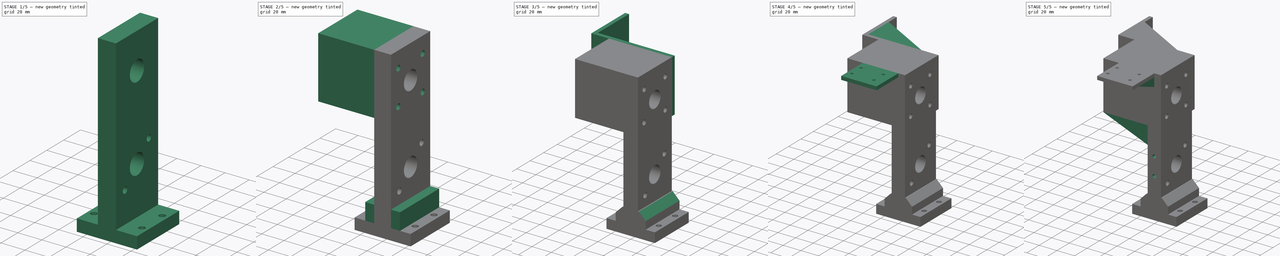
[diagram: build sequence overview — one tinted view per stage of 5, left to right]
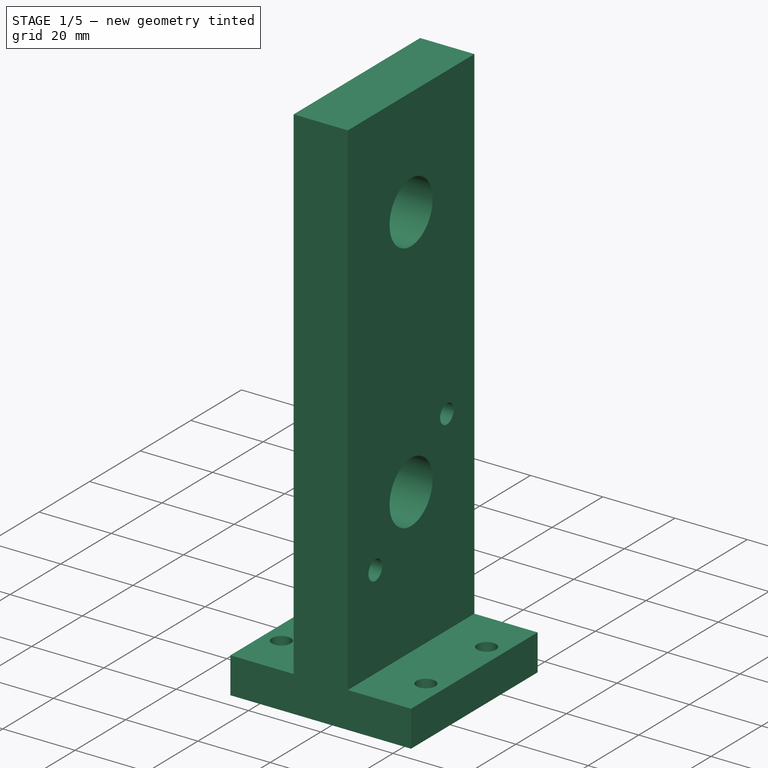
[diagram: stage 1 of 5 — iso view after this stage's code; geometry added in this stage tinted green]
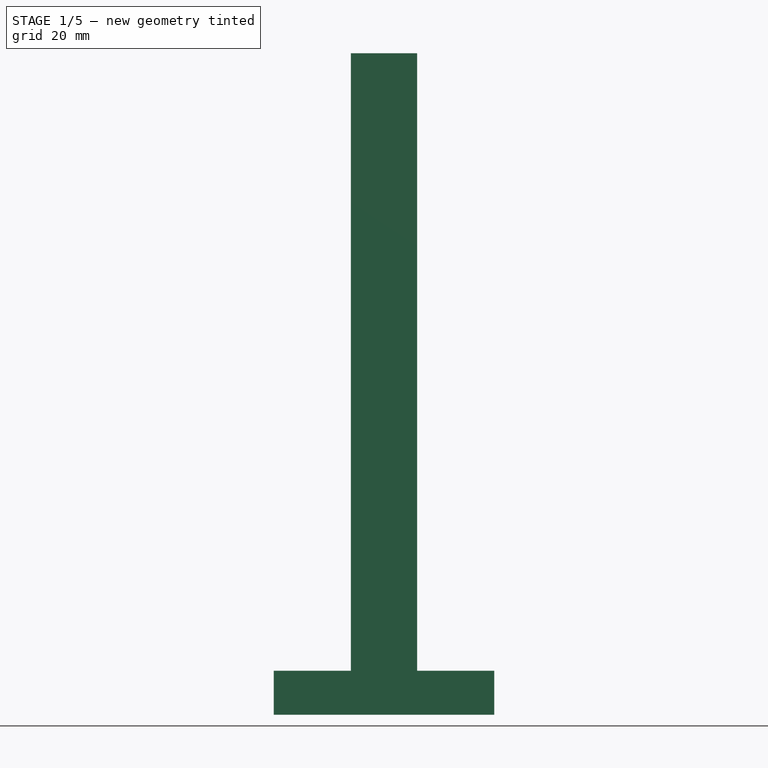
[diagram: stage 1 of 5 — front view after this stage's code; geometry added in this stage tinted green]
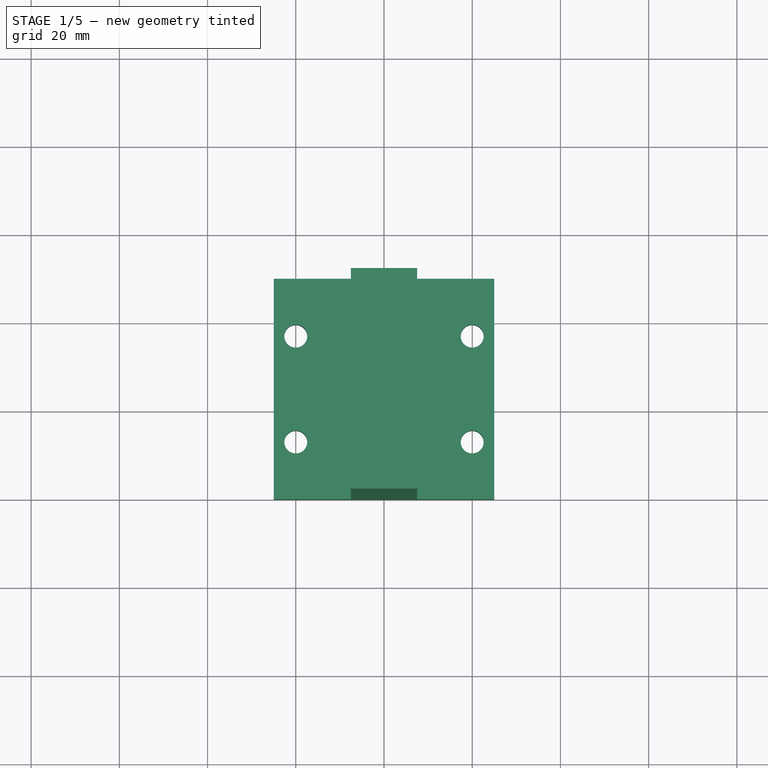
[diagram: stage 1 of 5 — top view after this stage's code; geometry added in this stage tinted green]
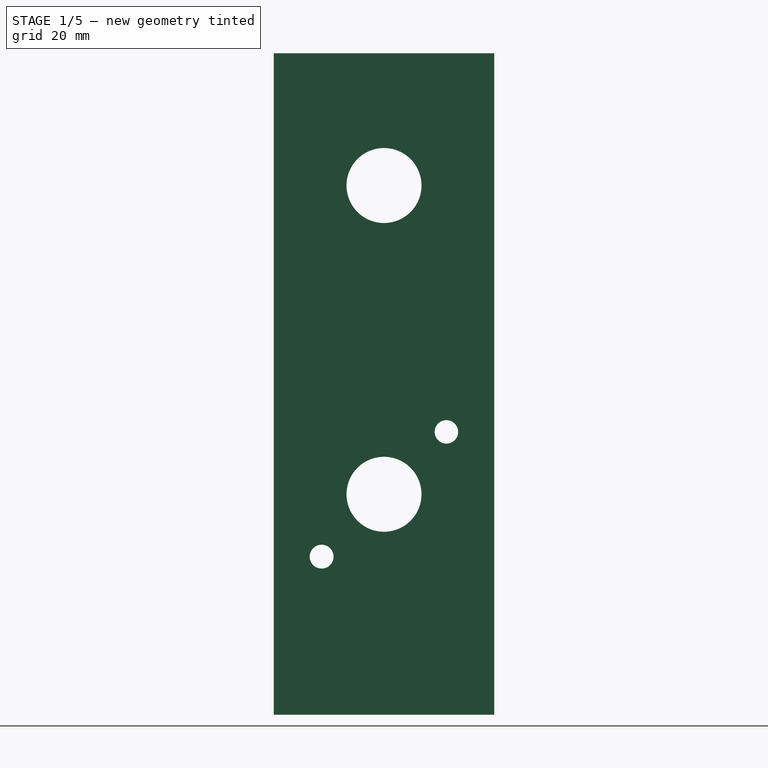
[diagram: stage 1 of 5 — right view after this stage's code; geometry added in this stage tinted green]
FCSTD DOCUMENT  (FreeCAD 0.20R29177 (Git))
Label: X_axis_Holder_Right_new
License: All rights reserved
LicenseURL: http://en.wikipedia.org/wiki/All_rights_reserved
objects: Sketcher::SketchObject×20, PartDesign::Pad×12, PartDesign::Plane×9, PartDesign::Pocket×8, PartDesign::Chamfer×2, PartDesign::Body×1
note: 74 computed .brp shape members not serialized (recipe doc carries the construction recipe); baked Part::Feature solids carry a one-line shape summary decoded from their .brp

FEATURE [Sketcher::SketchObject] Sketch
  FullyConstrained = true
  MapMode = 5
  Support = -> [XY_Plane]
  sketch-geometry (4):
    g0: LineSegment StartX=-25 StartY=0 StartZ=0 EndX=25 EndY=0 EndZ=0
    g1: LineSegment StartX=25 StartY=0 StartZ=0 EndX=25 EndY=50 EndZ=0
    g2: LineSegment StartX=25 StartY=50 StartZ=0 EndX=-25 EndY=50 EndZ=0
    g3: LineSegment StartX=-25 StartY=50 StartZ=0 EndX=-25 EndY=0 EndZ=0
  constraints (12):
    c: Coincident(g0,g1)
    c: Coincident(g1,g2)
    c: Coincident(g2,g3)
    c: Coincident(g3,g0)
    c: Horizontal(g0)
    c: Horizontal(g2)
    c: Vertical(g1)
    c: Vertical(g3)
    c: PointOnObject(g0,g-1)
    c: DistanceY(g1,g1) = 50
    c: DistanceX(g2,g2) = 50
    c: Distance(g0,g-2) = 25
FEATURE [PartDesign::Pad] Pad  label="Table"
  Direction = (0,0,1)
  Length = 10
  Length2 = 100
  Profile = -> Sketch
  ReferenceAxis = -> Sketch [N_Axis]
  Type = 0
FEATURE [Sketcher::SketchObject] Sketch001
  FullyConstrained = false
  MapMode = 5
  Placement = pos=(0,0,10) rot=(0,0,1;0rad)
  Support = -> [Pad]
  sketch-geometry (4):
    g0: LineSegment StartX=-7.5 StartY=50 StartZ=0 EndX=7.5 EndY=50 EndZ=0
    g1: LineSegment StartX=7.5 StartY=50 StartZ=0 EndX=7.5 EndY=0 EndZ=0
    g2: LineSegment StartX=7.5 StartY=0 StartZ=0 EndX=-7.5 EndY=0 EndZ=0
    g3: LineSegment StartX=-7.5 StartY=0 StartZ=0 EndX=-7.5 EndY=50 EndZ=0
  constraints (11):
    c: Coincident(g0,g1)
    c: Coincident(g1,g2)
    c: Coincident(g2,g3)
    c: Coincident(g3,g0)
    c: Horizontal(g0)
    c: Horizontal(g2)
    c: Vertical(g1)
    c: Vertical(g3)
    c: Distance(g0) = 15
    c: Distance(g0,g-2) = 7.5
    c: DistanceY(g1,g1) = 50
FEATURE [PartDesign::Pad] Pad001  label="Tower"
  BaseFeature = -> Pad
  Direction = (0,0,1)
  Length = 140
  Length2 = 100
  Profile = -> Sketch001
  ReferenceAxis = -> Sketch001 [N_Axis]
  Type = 0
FEATURE [Sketcher::SketchObject] Sketch004
  FullyConstrained = true
  MapMode = 5
  Placement = pos=(0,0,0) rot=(1,0,0;3.14159rad)
  sketch-geometry (5):
    g0: Circle CenterX=-20 CenterY=-13 CenterZ=0 NormalX=0 NormalY=0 NormalZ=1 AngleXU=0 Radius=2.6
    g1: Circle CenterX=20 CenterY=-13 CenterZ=0 NormalX=0 NormalY=0 NormalZ=1 AngleXU=0 Radius=2.6
    g2: Circle CenterX=-20 CenterY=-37 CenterZ=0 NormalX=0 NormalY=0 NormalZ=1 AngleXU=0 Radius=2.6
    g3: Circle CenterX=20 CenterY=-37 CenterZ=0 NormalX=0 NormalY=0 NormalZ=1 AngleXU=0 Radius=2.6
    g4: LineSegment StartX=-30 StartY=-25 StartZ=0 EndX=30.2882 EndY=-25 EndZ=0
  constraints (15):
    c: Radius(g3) = 2.6
    c: Radius(g2) = 2.6
    c: Radius(g1) = 2.6
    c: Radius(g0) = 2.6
    c: Horizontal(g4)
    c: Distance(g-1,g4) = 25
    c: Block(g4)
    c: Distance(g3,g4) = 12
    c: Distance(g1,g4) = 12
    c: Distance(g2,g4) = 12
    c: Distance(g0,g4) = 12
    c: Distance(g1,g-2) = 20
    c: Distance(g0,g-2) = 20
    c: Distance(g3,g-2) = 20
    c: Distance(g2,g-2) = 20
FEATURE [PartDesign::Pocket] Pocket002  label="Hole for SC16U"
  BaseFeature = -> Pad001
  Direction = (0,0,1)
  Length = 10
  Length2 = 100
  Profile = -> Sketch004
  ReferenceAxis = -> Sketch004 [N_Axis]
  Type = 0
FEATURE [Sketcher::SketchObject] Sketch005
  FullyConstrained = false
  MapMode = 5
  Placement = pos=(7.5,0,0) rot=(0.57735,0.57735,0.57735;2.0944rad)
  Support = -> [Pocket002]
  sketch-geometry (11):
    g0: Circle CenterX=25 CenterY=120 CenterZ=0 NormalX=0 NormalY=0 NormalZ=1 AngleXU=0 Radius=21.9471
    g1: Circle CenterX=25 CenterY=50 CenterZ=0 NormalX=0 NormalY=0 NormalZ=1 AngleXU=0 Radius=8.5
    g2: Circle CenterX=25 CenterY=120 CenterZ=0 NormalX=0 NormalY=0 NormalZ=1 AngleXU=0 Radius=8.5
    g3: LineSegment StartX=25 StartY=120 StartZ=0 EndX=0 EndY=95 EndZ=0
    g4: LineSegment StartX=25 StartY=120 StartZ=0 EndX=50.0034 EndY=94.9966 EndZ=0
    g5: LineSegment StartX=25 StartY=120 StartZ=0 EndX=49.5851 EndY=144.585 EndZ=0
    g6: LineSegment StartX=25 StartY=120 StartZ=0 EndX=0 EndY=145 EndZ=0
    g7: LineSegment StartX=25 StartY=50 StartZ=0 EndX=0 EndY=25 EndZ=0
    g8: LineSegment StartX=25 StartY=50 StartZ=0 EndX=50.0001 EndY=75.0001 EndZ=0
    g9: Circle CenterX=39.1421 CenterY=64.1421 CenterZ=0 NormalX=0 NormalY=0 NormalZ=1 AngleXU=0 Radius=2.66237
    g10: Circle CenterX=10.8579 CenterY=35.8579 CenterZ=0 NormalX=0 NormalY=0 NormalZ=1 AngleXU=0 Radius=2.70553
  constraints (26):
    c: Distance(g0,g-2) = 25
    c: Distance(g1,g-2) = 25
    c: Distance(g1,g0) = 70
    c: Diameter(g1) = 17
    c: Distance(g1,g-1) = 50
    c: Coincident(g2,g0)
    c: Diameter(g2) = 17
    c: Coincident(g3,g2)
    c: PointOnObject(g3,g-2)
    c: Angle(g-2,g3) = 2.35619
    c: Coincident(g4,g2)
    c: Angle(g3,g4) = 1.5708
    c: Coincident(g5,g2)
    c: Coincident(g6,g2)
    c: PointOnObject(g6,g-2)
    c: Angle(g4,g5) = 1.5708
    c: Angle(g6,g3) = 1.5708
    c: Coincident(g7,g1)
    c: PointOnObject(g7,g-2)
    c: Angle(g-2,g7) = 2.35619
    c: Coincident(g8,g1)
    c: Angle(g8,g7) = 3.14159
    c: PointOnObject(g9,g8)
    c: PointOnObject(g10,g7)
    c: Distance(g10,g1) = 20
    c: Distance(g9,g1) = 20
FEATURE [PartDesign::Pocket] Pocket
  BaseFeature = -> Pocket002
  Direction = (-1,0,0)
  Length = 15
  Length2 = 5
  Profile = -> Sketch005
  ReferenceAxis = -> Sketch005 [N_Axis]
  Type = 0
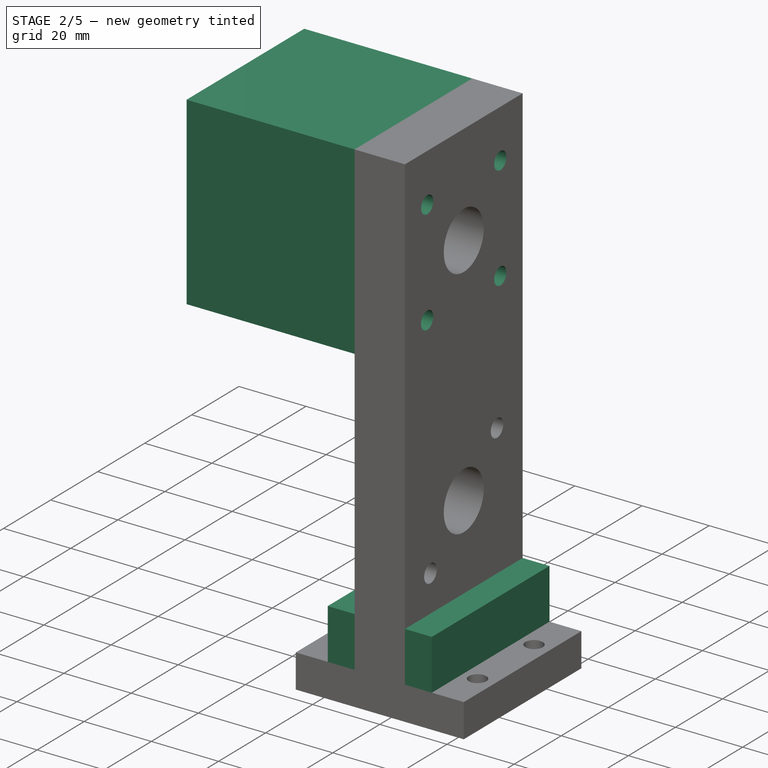
[diagram: stage 2 of 5 — iso view after this stage's code; geometry added in this stage tinted green]
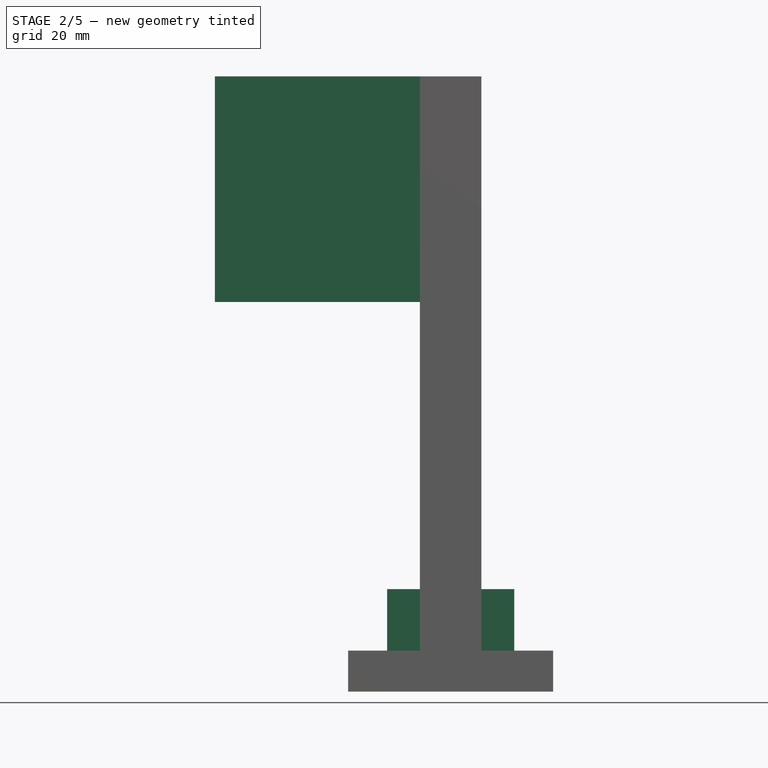
[diagram: stage 2 of 5 — front view after this stage's code; geometry added in this stage tinted green]
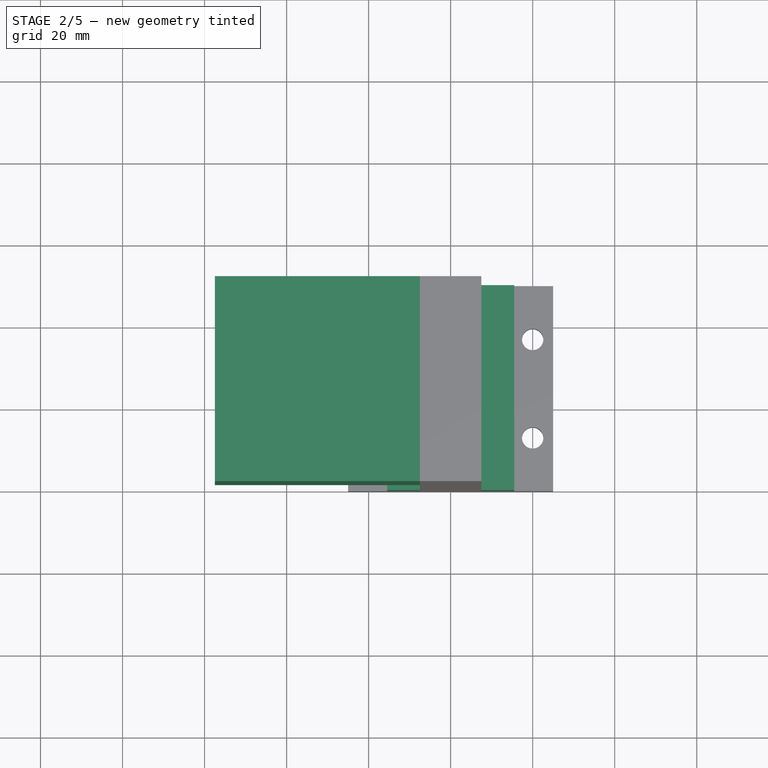
[diagram: stage 2 of 5 — top view after this stage's code; geometry added in this stage tinted green]
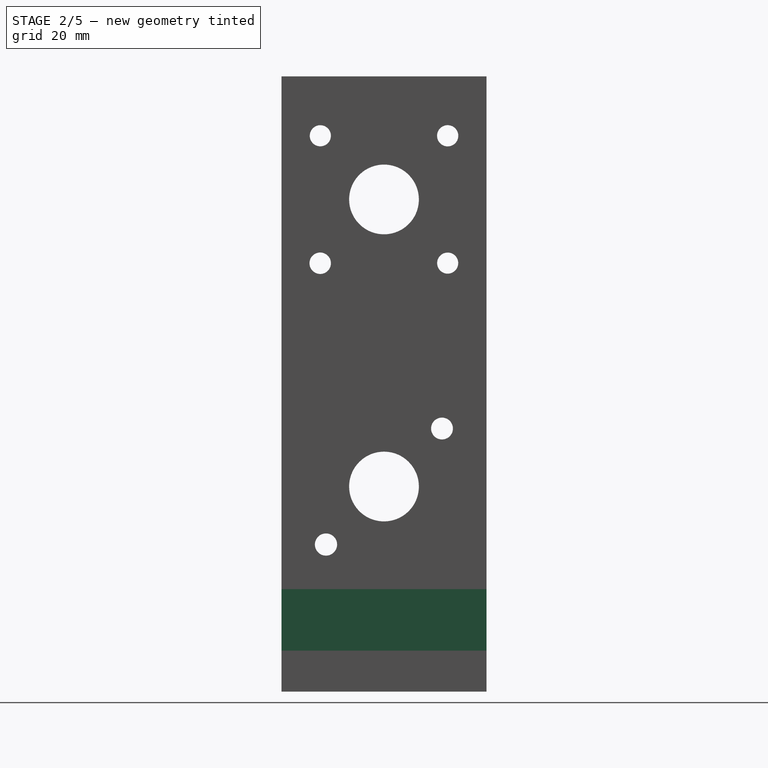
[diagram: stage 2 of 5 — right view after this stage's code; geometry added in this stage tinted green]
FEATURE [Sketcher::SketchObject] Sketch006
  FullyConstrained = true
  MapMode = 5
  Placement = pos=(-7.5,0,0) rot=(0.57735,-0.57735,-0.57735;2.0944rad)
  Support = -> [Pocket]
  sketch-geometry (4):
    g0: LineSegment StartX=-50 StartY=150 StartZ=0 EndX=0 EndY=150 EndZ=0
    g1: LineSegment StartX=0 StartY=150 StartZ=0 EndX=0 EndY=95 EndZ=0
    g2: LineSegment StartX=0 StartY=95 StartZ=0 EndX=-50 EndY=95 EndZ=0
    g3: LineSegment StartX=-50 StartY=95 StartZ=0 EndX=-50 EndY=150 EndZ=0
  constraints (12):
    c: Coincident(g0,g1)
    c: Coincident(g1,g2)
    c: Coincident(g2,g3)
    c: Coincident(g3,g0)
    c: Horizontal(g0)
    c: Horizontal(g2)
    c: Vertical(g1)
    c: Vertical(g3)
    c: PointOnObject(g1,g-2)
    c: DistanceX(g0,g0) = 50
    c: Distance(g1,g-1) = 95
    c: DistanceY(g1,g1) = 55
FEATURE [PartDesign::Pad] Pad002
  BaseFeature = -> Pocket
  Direction = (-1,0,0)
  Length = 50
  Length2 = 10
  Profile = -> Sketch006
  ReferenceAxis = -> Sketch006 [N_Axis]
  Type = 0
FEATURE [Sketcher::SketchObject] Sketch009
  FullyConstrained = false
  MapMode = 5
  Placement = pos=(0,0,10) rot=(0,0,1;0rad)
  sketch-geometry (8):
    g0: LineSegment StartX=7.5 StartY=50 StartZ=0 EndX=15.5 EndY=50 EndZ=0
    g1: LineSegment StartX=15.5 StartY=50 StartZ=0 EndX=15.5 EndY=0 EndZ=0
    g2: LineSegment StartX=15.5 StartY=0 StartZ=0 EndX=7.5 EndY=0 EndZ=0
    g3: LineSegment StartX=7.5 StartY=0 StartZ=0 EndX=7.5 EndY=50 EndZ=0
    g4: LineSegment StartX=-7.5 StartY=50 StartZ=0 EndX=-15.5 EndY=50 EndZ=0
    g5: LineSegment StartX=-15.5 StartY=50 StartZ=0 EndX=-15.5 EndY=0 EndZ=0
    g6: LineSegment StartX=-15.5 StartY=0 StartZ=0 EndX=-7.5 EndY=0 EndZ=0
    g7: LineSegment StartX=-7.5 StartY=0 StartZ=0 EndX=-7.5 EndY=50 EndZ=0
  constraints (22):
    c: Coincident(g0,g1)
    c: Coincident(g1,g2)
    c: Coincident(g2,g3)
    c: Coincident(g3,g0)
    c: Horizontal(g0)
    c: Horizontal(g2)
    c: Vertical(g1)
    c: Vertical(g3)
    c: DistanceX(g0,g0) = 8
    c: DistanceY(g1,g1) = 50
    c: Distance(g0,g-2) = 7.5
    c: Coincident(g4,g5)
    c: Coincident(g5,g6)
    c: Coincident(g6,g7)
    c: Coincident(g7,g4)
    c: Horizontal(g4)
    c: Horizontal(g6)
    c: Vertical(g5)
    c: Vertical(g7)
    c: DistanceX(g4,g4) = 8
    c: DistanceY(g5,g5) = 50
    c: Distance(g4,g-2) = 7.5
FEATURE [PartDesign::Pad] Pad003
  BaseFeature = -> Pad002
  Direction = (0,0,1)
  Length = 15
  Length2 = 10
  Profile = -> Sketch009
  ReferenceAxis = -> Sketch009 [N_Axis]
  Type = 0
FEATURE [Sketcher::SketchObject] Sketch010
  FullyConstrained = true
  MapMode = 5
  Placement = pos=(-7.5,0,0) rot=(0.57735,0.57735,0.57735;2.0944rad)
  Support = -> [Pad003]
  sketch-geometry (1):
    g0: Circle CenterX=25 CenterY=120 CenterZ=0 NormalX=0 NormalY=0 NormalZ=1 AngleXU=0 Radius=8.5
  constraints (3):
    c: Distance(g0,g-1) = 120
    c: Diameter(g0) = 17
    c: Distance(g0,g-2) = 25
FEATURE [PartDesign::Pocket] Pocket003
  BaseFeature = -> Pad003
  Direction = (-1,0,0)
  Length = 65
  Length2 = 5
  Profile = -> Sketch010
  ReferenceAxis = -> Sketch010 [N_Axis]
  Type = 0
FEATURE [PartDesign::Plane] DatumPlane
  Length = 165.741
  MapMode = 5
  Placement = pos=(-57.5,0,0) rot=(0.57735,-0.57735,-0.57735;2.0944rad)
  ResizeMode = 0
  Support = -> [Pocket003]
  Width = 205.741
FEATURE [Sketcher::SketchObject] Sketch011
  FullyConstrained = true
  MapMode = 5
  Placement = pos=(-57.5,0,0) rot=(0.57735,-0.57735,-0.57735;2.0944rad)
  Support = -> [DatumPlane]
  sketch-geometry (1):
    g0: Circle CenterX=-25 CenterY=120 CenterZ=0 NormalX=0 NormalY=0 NormalZ=1 AngleXU=0 Radius=18.1
  constraints (3):
    c: Diameter(g0) = 36.2
    c: Distance(g0,g-2) = 25
    c: Distance(g0,g-1) = 120
FEATURE [PartDesign::Pocket] Pocket004
  BaseFeature = -> Pocket003
  Direction = (1,0,0)
  Length = 18
  Length2 = 5
  Profile = -> Sketch011
  ReferenceAxis = -> Sketch011 [N_Axis]
  Type = 0
FEATURE [Sketcher::SketchObject] Sketch012
  FullyConstrained = false
  MapMode = 5
  Placement = pos=(-57.5,0,0) rot=(0.57735,-0.57735,-0.57735;2.0944rad)
  Support = -> [DatumPlane]
  sketch-geometry (9):
    g0: Circle CenterX=-25 CenterY=120 CenterZ=0 NormalX=0 NormalY=0 NormalZ=1 AngleXU=0 Radius=22
    g1: LineSegment StartX=-25 StartY=120 StartZ=0 EndX=-2.33266 EndY=142.667 EndZ=0
    g2: LineSegment StartX=-25 StartY=120 StartZ=0 EndX=0 EndY=95 EndZ=0
    g3: LineSegment StartX=-25 StartY=120 StartZ=0 EndX=-48.8558 EndY=96.1442 EndZ=0
    g4: LineSegment StartX=-25 StartY=120 StartZ=0 EndX=-43.6141 EndY=138.614 EndZ=0
    g5: Circle CenterX=-40.5257 CenterY=104.474 CenterZ=0 NormalX=0 NormalY=0 NormalZ=1 AngleXU=0 Radius=2.57098
    g6: Circle CenterX=-40.5243 CenterY=135.524 CenterZ=0 NormalX=0 NormalY=0 NormalZ=1 AngleXU=0 Radius=2.58738
    g7: Circle CenterX=-9.47356 CenterY=135.526 CenterZ=0 NormalX=0 NormalY=0 NormalZ=1 AngleXU=0 Radius=2.5756
    g8: Circle CenterX=-9.44234 CenterY=104.445 CenterZ=0 NormalX=0 NormalY=0 NormalZ=1 AngleXU=0 Radius=2.61384
  constraints (15):
    c: Diameter(g0) = 44
    c: Coincident(g1,g0)
    c: Coincident(g2,g0)
    c: PointOnObject(g2,g-2)
    c: Coincident(g3,g0)
    c: Coincident(g4,g0)
    c: Block(g0)
    c: Angle(g2,g-2) = 2.35619
    c: Angle(g3,g2) = 1.5708
    c: Angle(g4,g3) = 1.5708
    c: Angle(g1,g4) = 1.5708
    c: PointOnObject(g5,g3)
    c: PointOnObject(g6,g4)
    c: PointOnObject(g7,g1)
    c: PointOnObject(g8,g0)
FEATURE [PartDesign::Pocket] Pocket005
  BaseFeature = -> Pocket004
  Direction = (1,0,0)
  Length = 65
  Length2 = 5
  Profile = -> Sketch012
  ReferenceAxis = -> Sketch012 [N_Axis]
  Type = 0
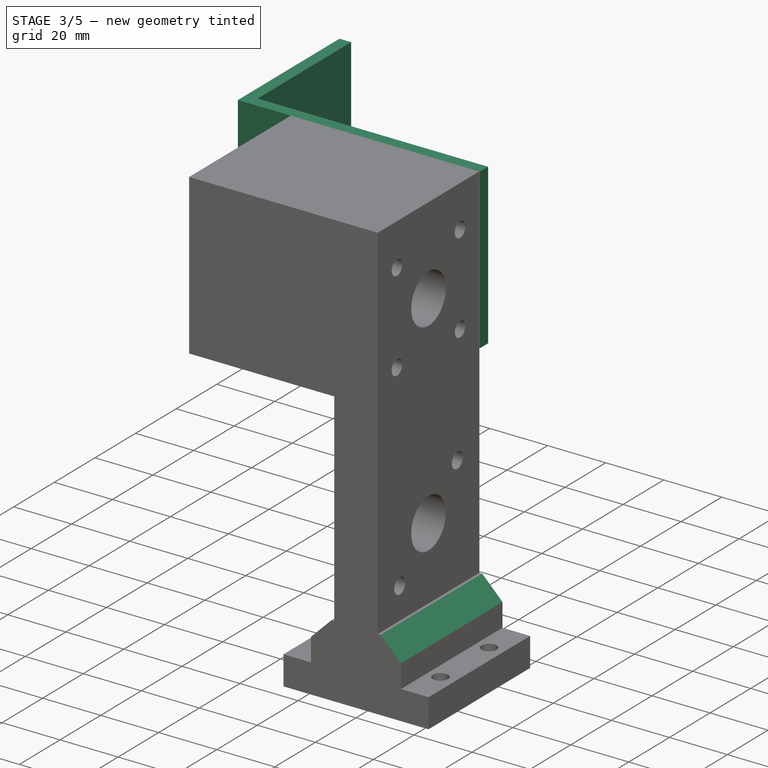
[diagram: stage 3 of 5 — iso view after this stage's code; geometry added in this stage tinted green]
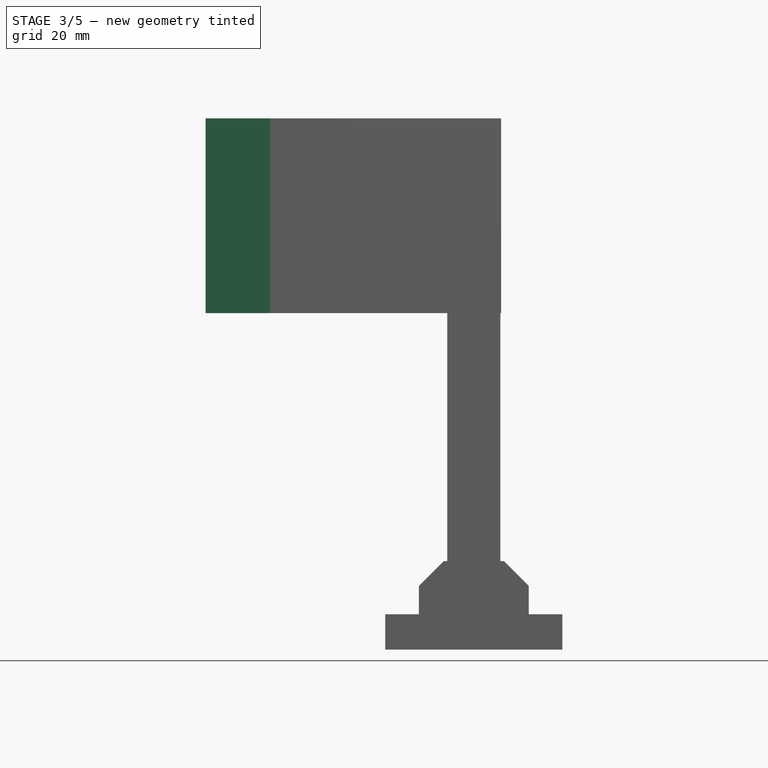
[diagram: stage 3 of 5 — front view after this stage's code; geometry added in this stage tinted green]
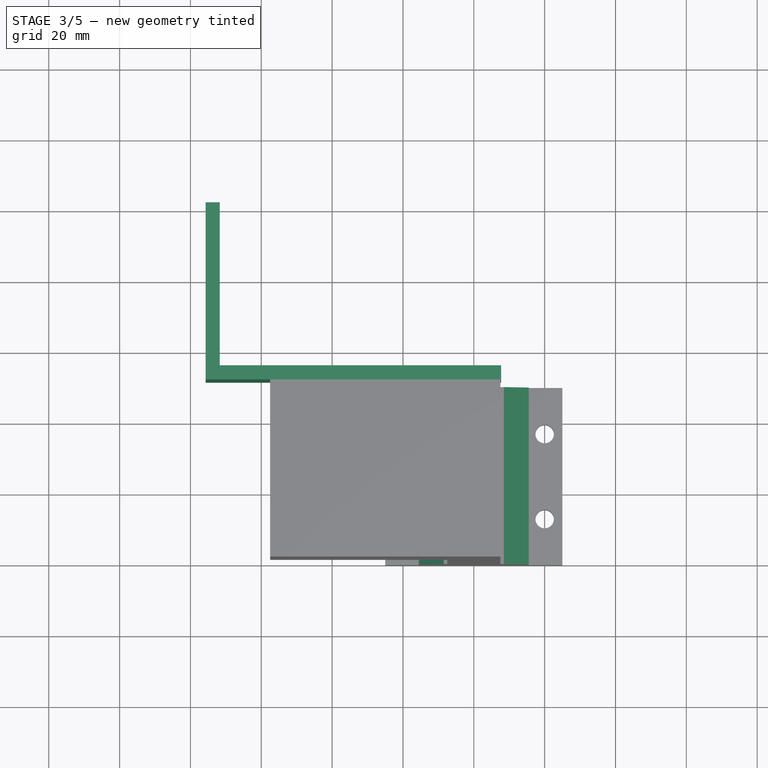
[diagram: stage 3 of 5 — top view after this stage's code; geometry added in this stage tinted green]
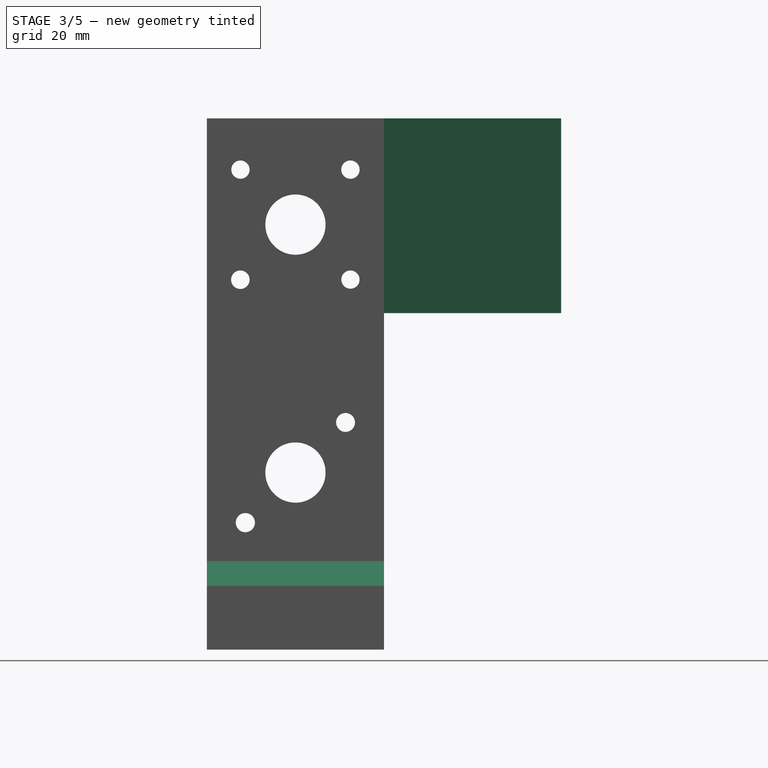
[diagram: stage 3 of 5 — right view after this stage's code; geometry added in this stage tinted green]
FEATURE [PartDesign::Chamfer] Chamfer
  Angle = 45
  Base = -> Pocket005 [Edge71]
  BaseFeature = -> Pocket005
  ChamferType = 0
  FlipDirection = false
  Size = 7
  Size2 = 1
  SupportTransform = false
  UseAllEdges = false
FEATURE [PartDesign::Chamfer] Chamfer001
  Angle = 45
  Base = -> Chamfer [Edge77]
  BaseFeature = -> Chamfer
  ChamferType = 0
  FlipDirection = false
  Size = 7
  Size2 = 1
  SupportTransform = false
  UseAllEdges = false
FEATURE [PartDesign::Plane] DatumPlane001
  Length = 127.262
  MapMode = 5
  Placement = pos=(0,50,0) rot=(0,0.707107,0.707107;3.14159rad)
  ResizeMode = 0
  Support = -> [Chamfer001]
  Width = 201.551
FEATURE [Sketcher::SketchObject] Sketch013
  FullyConstrained = false
  MapMode = 5
  Placement = pos=(0,50,0) rot=(0,0.707107,0.707107;3.14159rad)
  Support = -> [DatumPlane001]
  sketch-geometry (7):
    g0: LineSegment StartX=57.7051 StartY=150 StartZ=0 EndX=57.7051 EndY=0 EndZ=0
    g1: LineSegment StartX=97.705 StartY=150.077 StartZ=0 EndX=97.705 EndY=0 EndZ=0
    g2: LineSegment StartX=75.7098 StartY=149.616 StartZ=0 EndX=75.7098 EndY=70.5769 EndZ=0
    g3: LineSegment StartX=-7.72309 StartY=150 StartZ=0 EndX=75.7098 EndY=150 EndZ=0
    g4: LineSegment StartX=75.7098 StartY=150 StartZ=0 EndX=75.7098 EndY=95 EndZ=0
    g5: LineSegment StartX=75.7098 StartY=95 StartZ=0 EndX=-7.72309 EndY=95 EndZ=0
    g6: LineSegment StartX=-7.72309 StartY=95 StartZ=0 EndX=-7.72309 EndY=150 EndZ=0
  constraints (16):
    c: PointOnObject(g0,g-1)
    c: Block(g0)
    c: PointOnObject(g1,g-1)
    c: Vertical(g1)
    c: Distance(g0,g1) = 40
    c: Vertical(g2)
    c: Distance(g1,g2) = 22
    c: Coincident(g3,g4)
    c: Coincident(g4,g5)
    c: Coincident(g5,g6)
    c: Coincident(g6,g3)
    c: Horizontal(g3)
    c: Horizontal(g5)
    c: Vertical(g4)
    c: Vertical(g6)
    c: PointOnObject(g4,g2)
FEATURE [PartDesign::Pad] Pad004
  BaseFeature = -> Chamfer001
  Direction = (0,1,-2e-16)
  Length = 4
  Length2 = 10
  Profile = -> Sketch013
  ReferenceAxis = -> Sketch013 [N_Axis]
  Type = 0
FEATURE [Sketcher::SketchObject] Sketch014
  FullyConstrained = false
  MapMode = 5
  Placement = pos=(0,54,-1.4e-14) rot=(0,0.707107,0.707107;3.14159rad)
  Support = -> [Pad004]
  sketch-geometry (4):
    g0: LineSegment StartX=75.7104 StartY=95 StartZ=0 EndX=71.7104 EndY=95 EndZ=0
    g1: LineSegment StartX=71.7104 StartY=95 StartZ=0 EndX=71.7104 EndY=150 EndZ=0
    g2: LineSegment StartX=71.7104 StartY=150 StartZ=0 EndX=75.7104 EndY=150 EndZ=0
    g3: LineSegment StartX=75.7104 StartY=150 StartZ=0 EndX=75.7104 EndY=95 EndZ=0
  constraints (9):
    c: Coincident(g0,g1)
    c: Coincident(g1,g2)
    c: Coincident(g2,g3)
    c: Coincident(g3,g0)
    c: Horizontal(g0)
    c: Horizontal(g2)
    c: Vertical(g1)
    c: Vertical(g3)
    c: DistanceX(g2,g2) = 4
FEATURE [PartDesign::Pad] Pad005
  BaseFeature = -> Pad004
  Direction = (0,1,-2e-16)
  Length = 46
  Length2 = 10
  Profile = -> Sketch014
  ReferenceAxis = -> Sketch014 [N_Axis]
  Type = 0
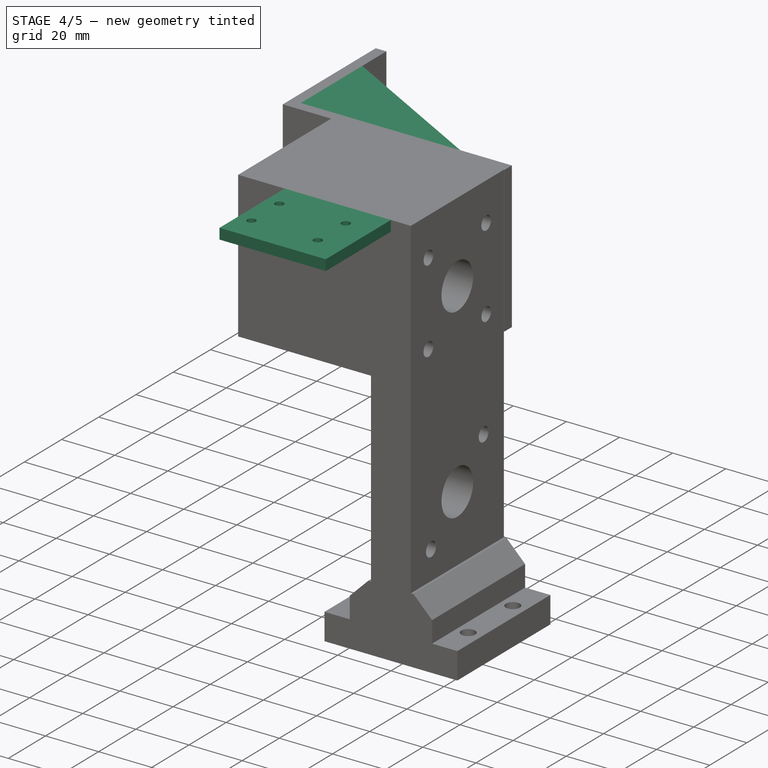
[diagram: stage 4 of 5 — iso view after this stage's code; geometry added in this stage tinted green]
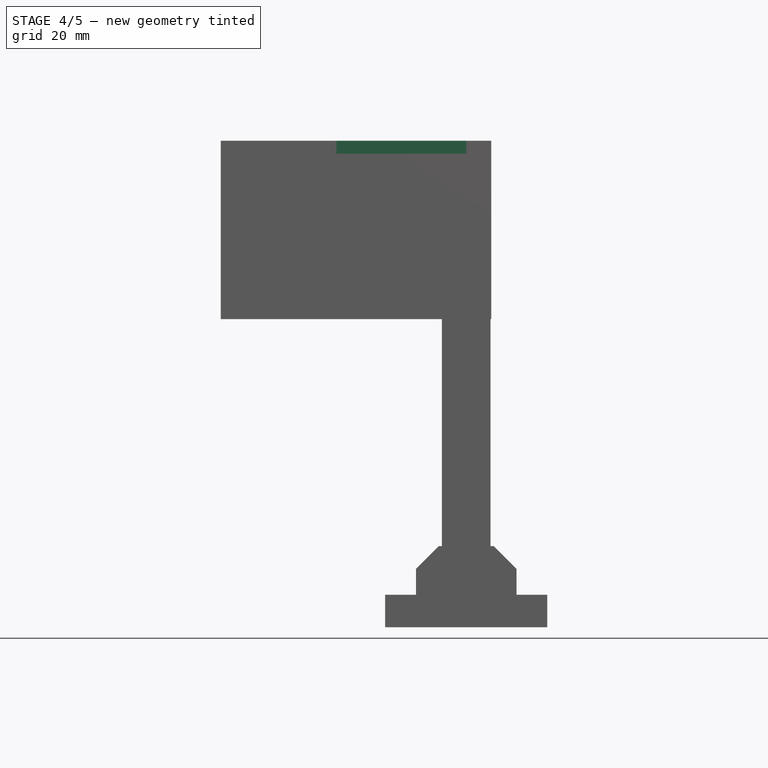
[diagram: stage 4 of 5 — front view after this stage's code; geometry added in this stage tinted green]
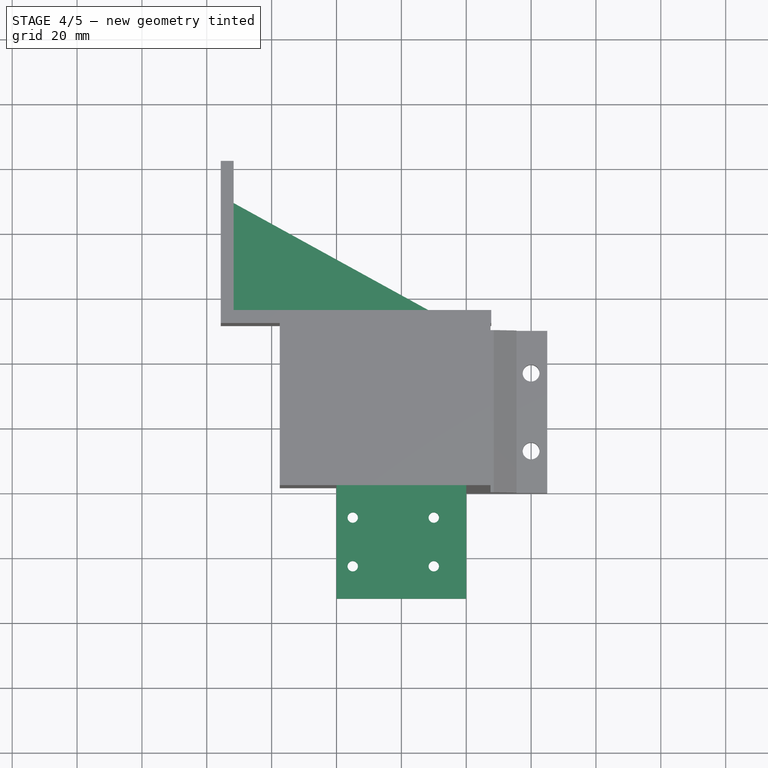
[diagram: stage 4 of 5 — top view after this stage's code; geometry added in this stage tinted green]
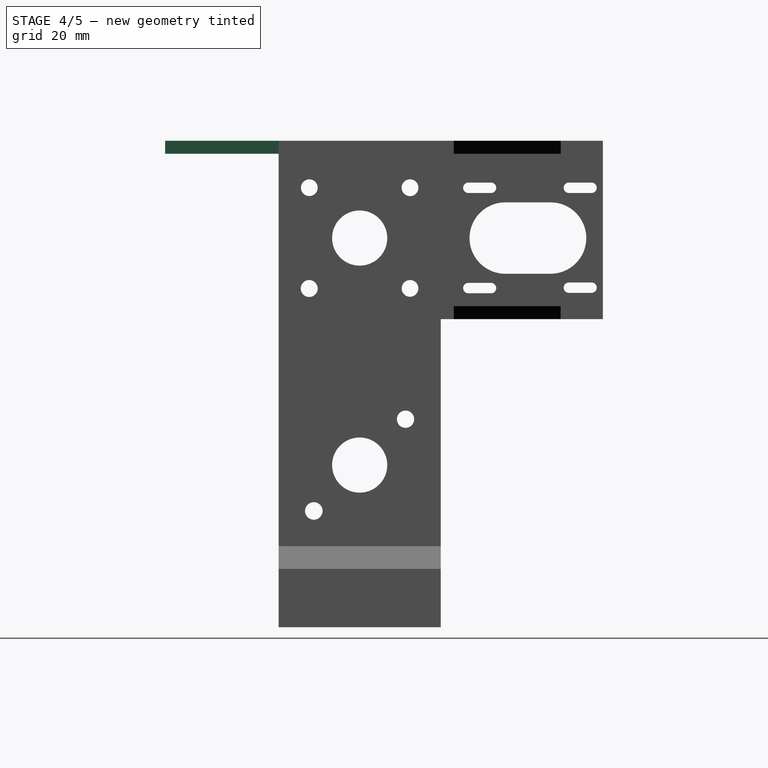
[diagram: stage 4 of 5 — right view after this stage's code; geometry added in this stage tinted green]
FEATURE [PartDesign::Plane] DatumPlane002
  Length = 124.031
  MapMode = 5
  Placement = pos=(0,3.3e-14,150) rot=(0,0,1;0rad)
  ResizeMode = 0
  Support = -> [Pad005]
  Width = 158.32
FEATURE [Sketcher::SketchObject] Sketch015
  FullyConstrained = false
  MapMode = 5
  Placement = pos=(0,3.3e-14,150) rot=(0,0,1;0rad)
  Support = -> [DatumPlane002]
  sketch-geometry (3):
    g0: LineSegment StartX=-71.7172 StartY=54 StartZ=0 EndX=-11.7172 EndY=54 EndZ=0
    g1: LineSegment StartX=-71.7172 StartY=54 StartZ=0 EndX=-71.7172 EndY=87 EndZ=0
    g2: LineSegment StartX=-71.7172 StartY=87 StartZ=0 EndX=-11.7172 EndY=54 EndZ=0
  constraints (7):
    c: Horizontal(g0)
    c: Coincident(g1,g0)
    c: Vertical(g1)
    c: DistanceX(g0,g0) = 60
    c: DistanceY(g1,g1) = 33
    c: Coincident(g2,g1)
    c: Coincident(g2,g0)
FEATURE [PartDesign::Pad] Pad006
  BaseFeature = -> Pad005
  Direction = (0,2e-16,1)
  Length = 4
  Length2 = 10
  Profile = -> Sketch015
  ReferenceAxis = -> Sketch015 [N_Axis]
  Reversed = true
  Type = 0
FEATURE [PartDesign::Plane] DatumPlane003
  Length = 124.031
  MapMode = 5
  Placement = pos=(0,2.09e-14,95) rot=(1,0,0;3.14159rad)
  ResizeMode = 0
  Support = -> [Pad006]
  Width = 158.32
FEATURE [Sketcher::SketchObject] Sketch016
  FullyConstrained = false
  MapMode = 5
  Placement = pos=(0,2.09e-14,95) rot=(1,0,0;3.14159rad)
  Support = -> [DatumPlane003]
  sketch-geometry (3):
    g0: LineSegment StartX=-71.7686 StartY=-54 StartZ=0 EndX=-11.7686 EndY=-54 EndZ=0
    g1: LineSegment StartX=-71.7686 StartY=-54 StartZ=0 EndX=-71.7686 EndY=-87 EndZ=0
    g2: LineSegment StartX=-71.7686 StartY=-87 StartZ=0 EndX=-11.7686 EndY=-54 EndZ=0
  constraints (7):
    c: Horizontal(g0)
    c: Coincident(g1,g0)
    c: Vertical(g1)
    c: DistanceX(g0,g0) = 60
    c: DistanceY(g1,g1) = 33
    c: Coincident(g2,g1)
    c: Coincident(g2,g0)
FEATURE [PartDesign::Pad] Pad007
  BaseFeature = -> Pad006
  Direction = (0,-2e-16,-1)
  Length = 4
  Length2 = 10
  Profile = -> Sketch016
  ReferenceAxis = -> Sketch016 [N_Axis]
  Reversed = true
  Type = 0
FEATURE [PartDesign::Plane] DatumPlane004
  Length = 165.741
  MapMode = 5
  Placement = pos=(-75.7104,0,0) rot=(0.57735,-0.57735,-0.57735;2.0944rad)
  ResizeMode = 0
  Support = -> [Pad007]
  Width = 205.741
FEATURE [Sketcher::SketchObject] Sketch017
  FullyConstrained = false
  MapMode = 5
  Placement = pos=(-75.7104,0,0) rot=(0.57735,-0.57735,-0.57735;2.0944rad)
  Support = -> [DatumPlane004]
  sketch-geometry (24):
    g0: GeomPoint X=-94 Y=120 Z=0
    g1: GeomPoint X=-54.5168 Y=150.022 Z=0
    g2: LineSegment StartX=-94 StartY=135.5 StartZ=0 EndX=-54.5426 EndY=135.5 EndZ=0
    g3: LineSegment StartX=-89.5 StartY=150 StartZ=0 EndX=-89.5 EndY=101 EndZ=0
    g4: ArcOfCircle CenterX=-58.5003 CenterY=104.567 CenterZ=0 NormalX=0 NormalY=0 NormalZ=1 AngleXU=0 Radius=1.6 StartAngle=4.71239 EndAngle=7.85398
    g5: ArcOfCircle CenterX=-65.5003 CenterY=104.567 CenterZ=0 NormalX=0 NormalY=0 NormalZ=1 AngleXU=0 Radius=1.6 StartAngle=1.5708 EndAngle=4.71239
    g6: LineSegment StartX=-58.5003 StartY=106.167 StartZ=0 EndX=-65.5003 EndY=106.167 EndZ=0
    g7: LineSegment StartX=-65.5003 StartY=102.967 StartZ=0 EndX=-58.5003 EndY=102.967 EndZ=0
    g8: ArcOfCircle CenterX=-89.5 CenterY=104.707 CenterZ=0 NormalX=0 NormalY=0 NormalZ=1 AngleXU=0 Radius=1.6 StartAngle=4.71239 EndAngle=7.85398
    g9: ArcOfCircle CenterX=-96.5 CenterY=104.707 CenterZ=0 NormalX=0 NormalY=0 NormalZ=1 AngleXU=0 Radius=1.6 StartAngle=1.5708 EndAngle=4.71239
    g10: LineSegment StartX=-89.5 StartY=106.307 StartZ=0 EndX=-96.5 EndY=106.307 EndZ=0
    g11: LineSegment StartX=-96.5 StartY=103.107 StartZ=0 EndX=-89.5 EndY=103.107 EndZ=0
    g12: ArcOfCircle CenterX=-89.5008 CenterY=135.5 CenterZ=0 NormalX=0 NormalY=0 NormalZ=1 AngleXU=0 Radius=1.6 StartAngle=4.71239 EndAngle=7.85398
    g13: ArcOfCircle CenterX=-96.5008 CenterY=135.5 CenterZ=0 NormalX=0 NormalY=0 NormalZ=1 AngleXU=0 Radius=1.6 StartAngle=1.5708 EndAngle=4.71239
    g14: LineSegment StartX=-89.5008 StartY=137.1 StartZ=0 EndX=-96.5008 EndY=137.1 EndZ=0
    g15: LineSegment StartX=-96.5008 StartY=133.9 StartZ=0 EndX=-89.5008 EndY=133.9 EndZ=0
    g16: ArcOfCircle CenterX=-58.5008 CenterY=135.5 CenterZ=0 NormalX=0 NormalY=0 NormalZ=1 AngleXU=0 Radius=1.6 StartAngle=4.71239 EndAngle=7.85398
    g17: ArcOfCircle CenterX=-65.5008 CenterY=135.5 CenterZ=0 NormalX=0 NormalY=0 NormalZ=1 AngleXU=0 Radius=1.6 StartAngle=1.5708 EndAngle=4.71239
    g18: LineSegment StartX=-58.5008 StartY=137.1 StartZ=0 EndX=-65.5008 EndY=137.1 EndZ=0
    g19: LineSegment StartX=-65.5008 StartY=133.9 StartZ=0 EndX=-58.5008 EndY=133.9 EndZ=0
    g20: ArcOfCircle CenterX=-69.8766 CenterY=120 CenterZ=0 NormalX=0 NormalY=0 NormalZ=1 AngleXU=0 Radius=11 StartAngle=4.71239 EndAngle=7.85398
    g21: ArcOfCircle CenterX=-83.8766 CenterY=120 CenterZ=0 NormalX=0 NormalY=0 NormalZ=1 AngleXU=0 Radius=11 StartAngle=1.5708 EndAngle=4.71239
    g22: LineSegment StartX=-69.8766 StartY=131 StartZ=0 EndX=-83.8766 EndY=131 EndZ=0
    g23: LineSegment StartX=-83.8766 StartY=109 StartZ=0 EndX=-69.8766 EndY=109 EndZ=0
  constraints (49):
    c: Horizontal(g2)
    c: Block(g2)
    c: Block(g3)
    c: Tangent(g4,g6) = -1.5708
    c: Tangent(g6,g5) = -1.5708
    c: Tangent(g5,g7) = -1.5708
    c: Tangent(g7,g4) = -1.5708
    c: Equal(g4,g5)
    c: Horizontal(g6)
    c: Tangent(g8,g10) = -1.5708
    c: Tangent(g10,g9) = -1.5708
    c: Tangent(g9,g11) = -1.5708
    c: Tangent(g11,g8) = -1.5708
    c: Equal(g8,g9)
    c: Horizontal(g10)
    c: Diameter(g4) = 3.2
    c: Diameter(g9) = 3.2
    c: DistanceX(g6,g6) = 7
    c: DistanceX(g10,g10) = 7
    c: Tangent(g12,g14) = -1.5708
    c: Tangent(g14,g13) = -1.5708
    c: Tangent(g13,g15) = -1.5708
    c: Tangent(g15,g12) = -1.5708
    c: Equal(g12,g13)
    c: PointOnObject(g12,g2)
    c: PointOnObject(g13,g2)
    c: Diameter(g12) = 3.2
    c: DistanceX(g14,g14) = 7
    c: Block(g14)
    c: Tangent(g16,g18) = -1.5708
    c: Tangent(g18,g17) = -1.5708
    c: Tangent(g17,g19) = -1.5708
    c: Tangent(g19,g16) = -1.5708
    c: Equal(g16,g17)
    c: PointOnObject(g16,g2)
    c: PointOnObject(g17,g2)
    c: DistanceX(g18,g18) = 7
    c: Diameter(g16) = 3.2
    c: Distance(g12,g16) = 31
    c: Block(g8)
    c: Tangent(g20,g22) = -1.5708
    c: Tangent(g22,g21) = -1.5708
    c: Tangent(g21,g23) = -1.5708
    c: Tangent(g23,g20) = -1.5708
    c: Equal(g20,g21)
    c: Horizontal(g22)
    c: DistanceX(g22,g22) = 14
    c: Diameter(g20) = 22
    c: Distance(g21,g2) = 15.5
FEATURE [PartDesign::Pocket] Pocket006
  BaseFeature = -> Pad007
  Direction = (1,0,0)
  Length = 5
  Length2 = 5
  Profile = -> Sketch017
  ReferenceAxis = -> Sketch017 [N_Axis]
  Type = 0
FEATURE [PartDesign::Plane] DatumPlane005
  Length = 124.031
  MapMode = 5
  Placement = pos=(0,0,150) rot=(0,0,1;0rad)
  ResizeMode = 0
  Support = -> [Pocket006]
  Width = 158.32
FEATURE [Sketcher::SketchObject] Sketch018
  FullyConstrained = true
  MapMode = 5
  Placement = pos=(0,0,150) rot=(0,0,1;0rad)
  Support = -> [DatumPlane005]
  sketch-geometry (4):
    g0: LineSegment StartX=0 StartY=0 StartZ=0 EndX=-40 EndY=0 EndZ=0
    g1: LineSegment StartX=-40 StartY=0 StartZ=0 EndX=-40 EndY=-35 EndZ=0
    g2: LineSegment StartX=-40 StartY=-35 StartZ=0 EndX=0 EndY=-35 EndZ=0
    g3: LineSegment StartX=0 StartY=-35 StartZ=0 EndX=0 EndY=0 EndZ=0
  constraints (11):
    c: Coincident(g0,g1)
    c: Coincident(g1,g2)
    c: Coincident(g2,g3)
    c: Coincident(g3,g0)
    c: Horizontal(g0)
    c: Horizontal(g2)
    c: Vertical(g1)
    c: Vertical(g3)
    c: Coincident(g0,g-1)
    c: DistanceY(g3,g3) = 35
    c: DistanceX(g0,g0) = 40
FEATURE [PartDesign::Pad] Pad008
  BaseFeature = -> Pocket006
  Direction = (0,0,1)
  Length = 4
  Length2 = 10
  Profile = -> Sketch018
  ReferenceAxis = -> Sketch018 [N_Axis]
  Reversed = true
  Type = 0
FEATURE [Sketcher::SketchObject] Sketch019
  FullyConstrained = true
  MapMode = 5
  Placement = pos=(0,0,150) rot=(0,0,1;0rad)
  Support = -> [DatumPlane005]
  sketch-geometry (4):
    g0: Circle CenterX=-10 CenterY=-10 CenterZ=0 NormalX=0 NormalY=0 NormalZ=1 AngleXU=0 Radius=1.6
    g1: Circle CenterX=-10 CenterY=-25 CenterZ=0 NormalX=0 NormalY=0 NormalZ=1 AngleXU=0 Radius=1.6
    g2: Circle CenterX=-35 CenterY=-10 CenterZ=0 NormalX=0 NormalY=0 NormalZ=1 AngleXU=0 Radius=1.6
    g3: Circle CenterX=-35 CenterY=-25 CenterZ=0 NormalX=0 NormalY=0 NormalZ=1 AngleXU=0 Radius=1.6
  constraints (12):
    c: Distance(g0,g-1) = 10
    c: Distance(g2,g-1) = 10
    c: Distance(g0,g1) = 15
    c: Distance(g3,g2) = 15
    c: Distance(g0,g-2) = 10
    c: Distance(g1,g-2) = 10
    c: Distance(g1,g3) = 25
    c: Distance(g0,g2) = 25
    c: Diameter(g0) = 3.2
    c: Diameter(g1) = 3.2
    c: Diameter(g3) = 3.2
    c: Diameter(g2) = 3.2
FEATURE [PartDesign::Pocket] Pocket007
  BaseFeature = -> Pad008
  Direction = (0,0,-1)
  Length = 5
  Length2 = 5
  Profile = -> Sketch019
  ReferenceAxis = -> Sketch019 [N_Axis]
  Type = 0
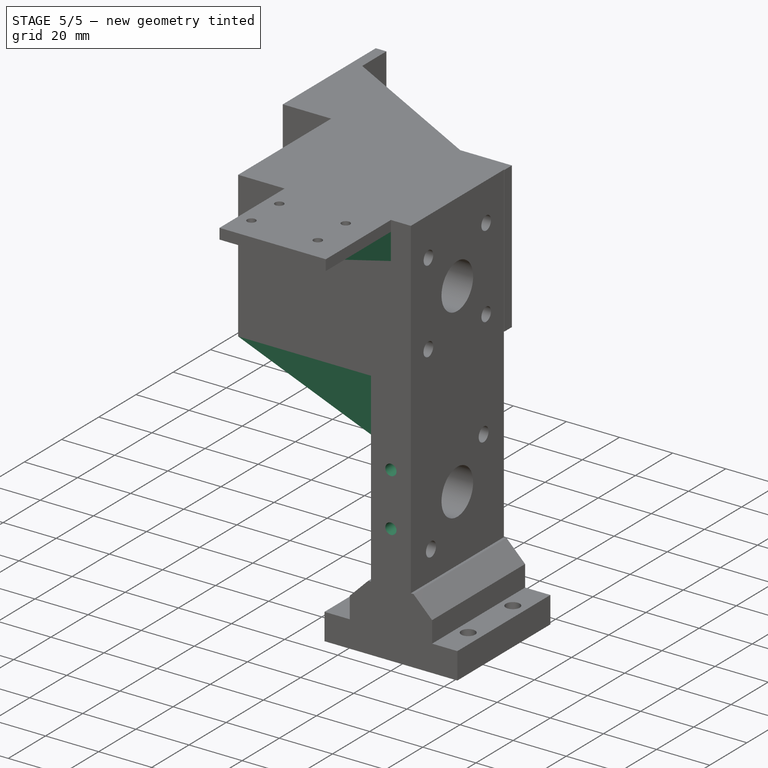
[diagram: stage 5 of 5 — iso view after this stage's code; geometry added in this stage tinted green]
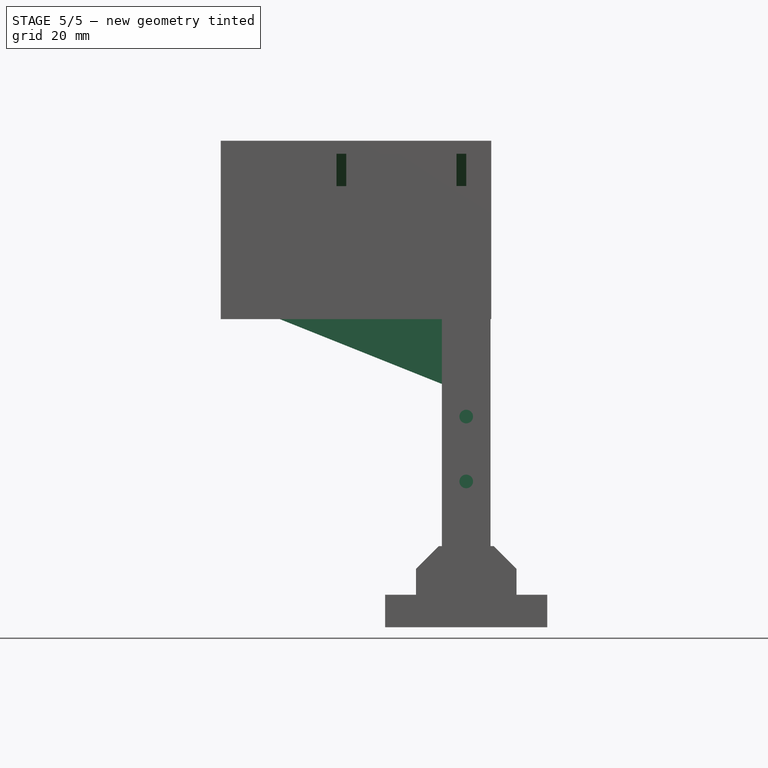
[diagram: stage 5 of 5 — front view after this stage's code; geometry added in this stage tinted green]
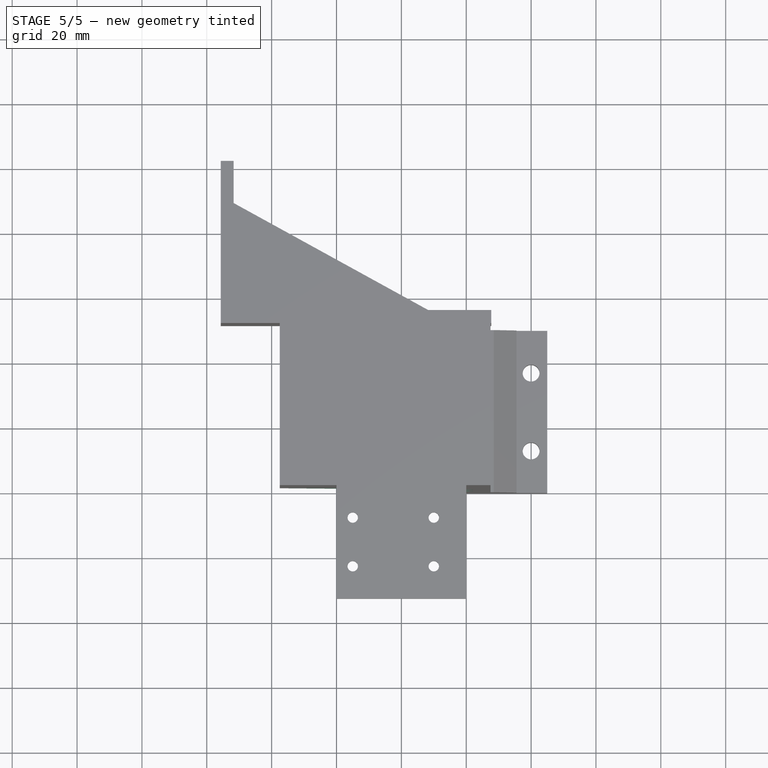
[diagram: stage 5 of 5 — top view after this stage's code; geometry added in this stage tinted green]
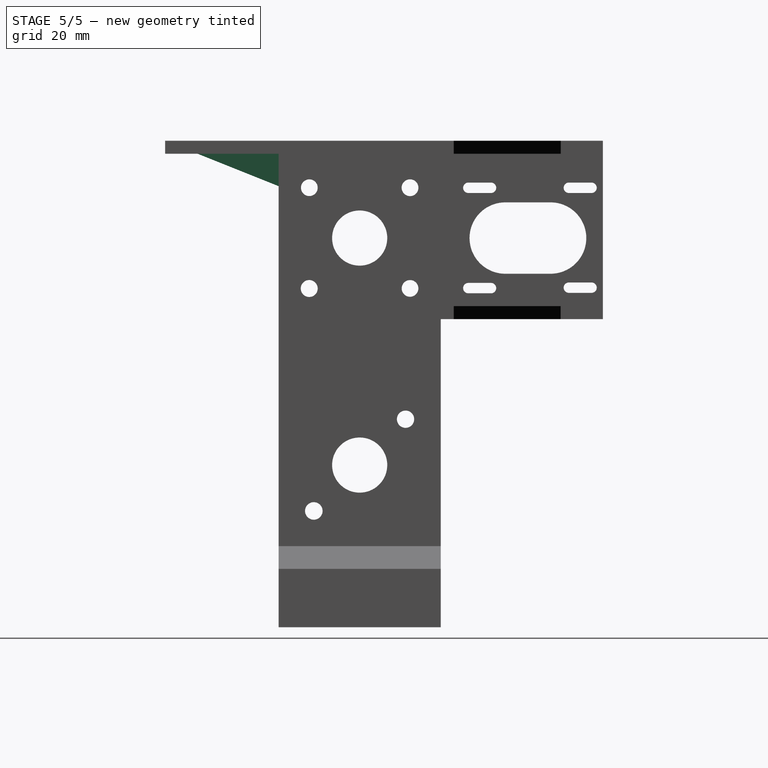
[diagram: stage 5 of 5 — right view after this stage's code; geometry added in this stage tinted green]
FEATURE [PartDesign::Plane] DatumPlane006
  Length = 165.741
  MapMode = 5
  Placement = pos=(0,0,0) rot=(0.57735,0.57735,0.57735;2.0944rad)
  ResizeMode = 0
  Support = -> [Pocket007]
  Width = 205.741
FEATURE [Sketcher::SketchObject] Sketch020
  FullyConstrained = false
  MapMode = 5
  Placement = pos=(0,0,0) rot=(0.57735,0.57735,0.57735;2.0944rad)
  Support = -> [DatumPlane006]
  sketch-geometry (3):
    g0: LineSegment StartX=0 StartY=146.041 StartZ=0 EndX=-25 EndY=146.041 EndZ=0
    g1: LineSegment StartX=0 StartY=146.041 StartZ=0 EndX=0 EndY=136.041 EndZ=0
    g2: LineSegment StartX=0 StartY=136.041 StartZ=0 EndX=-25 EndY=146.041 EndZ=0
  constraints (8):
    c: PointOnObject(g0,g-2)
    c: Horizontal(g0)
    c: Coincident(g1,g0)
    c: PointOnObject(g1,g-2)
    c: Coincident(g2,g1)
    c: Coincident(g2,g0)
    c: DistanceX(g0,g0) = 25
    c: DistanceY(g1,g1) = 10
FEATURE [PartDesign::Pad] Pad009
  BaseFeature = -> Pocket007
  Direction = (1,0,0)
  Length = 3
  Length2 = 10
  Profile = -> Sketch020
  ReferenceAxis = -> Sketch020 [N_Axis]
  Reversed = true
  Type = 0
FEATURE [PartDesign::Plane] DatumPlane007
  Length = 165.741
  MapMode = 5
  Placement = pos=(-40,0,0) rot=(0.57735,-0.57735,-0.57735;2.0944rad)
  ResizeMode = 0
  Support = -> [Pad009]
  Width = 205.741
FEATURE [Sketcher::SketchObject] Sketch021
  FullyConstrained = false
  MapMode = 5
  Placement = pos=(-40,0,0) rot=(0.57735,-0.57735,-0.57735;2.0944rad)
  Support = -> [DatumPlane007]
  sketch-geometry (3):
    g0: LineSegment StartX=0 StartY=146 StartZ=0 EndX=25 EndY=146 EndZ=0
    g1: LineSegment StartX=0 StartY=146 StartZ=0 EndX=0 EndY=136 EndZ=0
    g2: LineSegment StartX=0 StartY=136 StartZ=0 EndX=25 EndY=146 EndZ=0
  constraints (6):
    c: PointOnObject(g0,g-2)
    c: Horizontal(g0)
    c: Coincident(g1,g0)
    c: PointOnObject(g1,g-2)
    c: Coincident(g2,g1)
    c: Coincident(g2,g0)
FEATURE [PartDesign::Pad] Pad010
  BaseFeature = -> Pad009
  Direction = (-1,0,0)
  Length = 3
  Length2 = 10
  Profile = -> Sketch021
  ReferenceAxis = -> Sketch021 [N_Axis]
  Reversed = true
  Type = 0
FEATURE [Sketcher::SketchObject] Sketch022
  FullyConstrained = true
  MapMode = 5
  Placement = pos=(0,0,0) rot=(1,0,0;1.5708rad)
  Support = -> [Pocket006]
  sketch-geometry (2):
    g0: Circle CenterX=0 CenterY=44.9586 CenterZ=0 NormalX=0 NormalY=0 NormalZ=1 AngleXU=0 Radius=2.1
    g1: Circle CenterX=0 CenterY=64.9586 CenterZ=0 NormalX=0 NormalY=0 NormalZ=1 AngleXU=0 Radius=2.1
  constraints (4):
    c: Block(g0)
    c: PointOnObject(g1,g-2)
    c: Diameter(g1) = 4.2
    c: Distance(g0,g1) = 20
FEATURE [PartDesign::Pocket] Pocket008
  BaseFeature = -> Pad010
  Direction = (0,1,-2e-16)
  Length = 10
  Length2 = 5
  Profile = -> Sketch022
  ReferenceAxis = -> Sketch022 [N_Axis]
  Type = 0
FEATURE [PartDesign::Plane] DatumPlane008
  Length = 127.262
  MapMode = 5
  Placement = pos=(0,0,0) rot=(1,0,0;1.5708rad)
  ResizeMode = 0
  Support = -> [Pocket008]
  Width = 201.551
FEATURE [Sketcher::SketchObject] Sketch023
  FullyConstrained = false
  MapMode = 5
  Placement = pos=(0,0,0) rot=(1,0,0;1.5708rad)
  Support = -> [DatumPlane008]
  sketch-geometry (3):
    g0: LineSegment StartX=-7.49566 StartY=95 StartZ=0 EndX=-7.49566 EndY=75 EndZ=0
    g1: LineSegment StartX=-7.49566 StartY=95 StartZ=0 EndX=-57.4957 EndY=95 EndZ=0
    g2: LineSegment StartX=-57.4957 StartY=95 StartZ=0 EndX=-7.49566 EndY=75 EndZ=0
  constraints (7):
    c: Vertical(g0)
    c: Coincident(g1,g0)
    c: Horizontal(g1)
    c: DistanceX(g1,g1) = 50
    c: DistanceY(g0,g0) = 20
    c: Coincident(g2,g1)
    c: Coincident(g2,g0)
FEATURE [PartDesign::Pad] Pad011
  BaseFeature = -> Pocket008
  Direction = (0,-1,2e-16)
  Length = 50
  Length2 = 10
  Profile = -> Sketch023
  ReferenceAxis = -> Sketch023 [N_Axis]
  Reversed = true
  Type = 0
FEATURE [PartDesign::Body] Body
  Group = -> [Sketch,Pad,Sketch001,Pad001,Sketch004,Pocket002,Sketch005,Pocket,Sketch006,Pad002,Sketch009,Pad003,Sketch010,Pocket003,DatumPlane,Sketch011,Pocket004,Sketch012,Pocket005,Chamfer,Chamfer001,DatumPlane001,Sketch013,Pad004,Sketch014,Pad005,DatumPlane002,Sketch015,Pad006,DatumPlane003,Sketch016,Pad007,DatumPlane004,Sketch017,Pocket006,DatumPlane005,Sketch018,Pad008,Sketch019,Pocket007,DatumPlane006,+10 more]
  Origin = -> Origin
  Tip = -> Pad011
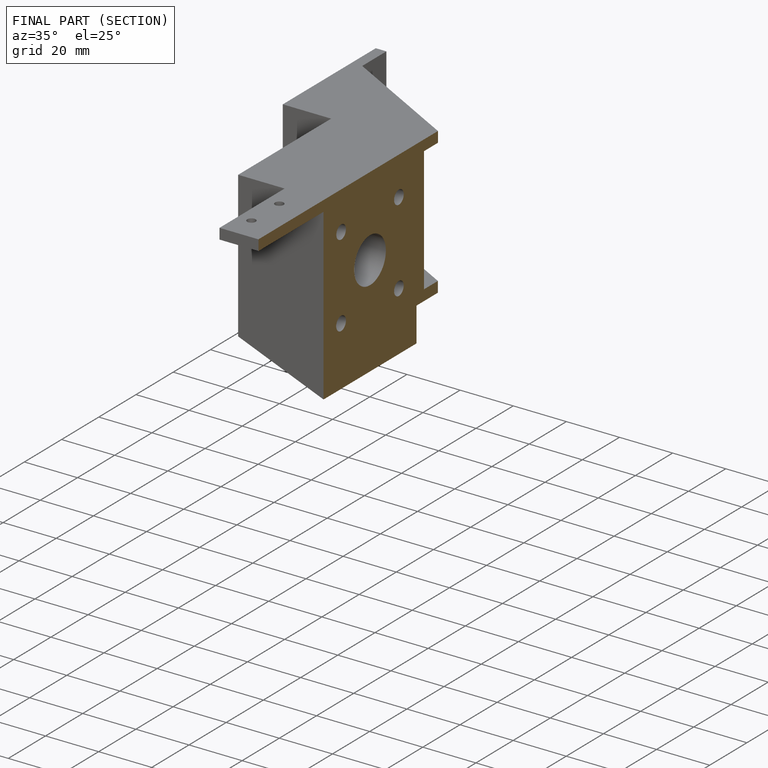
[diagram: finished part — half-section view (interior)]
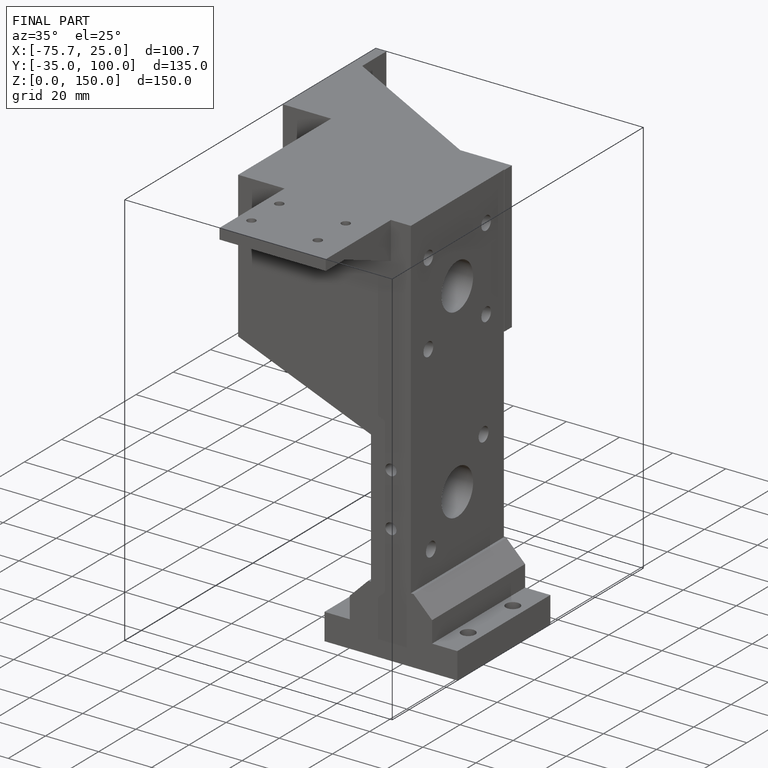
[diagram: finished part — iso view with bounding-box wireframe]
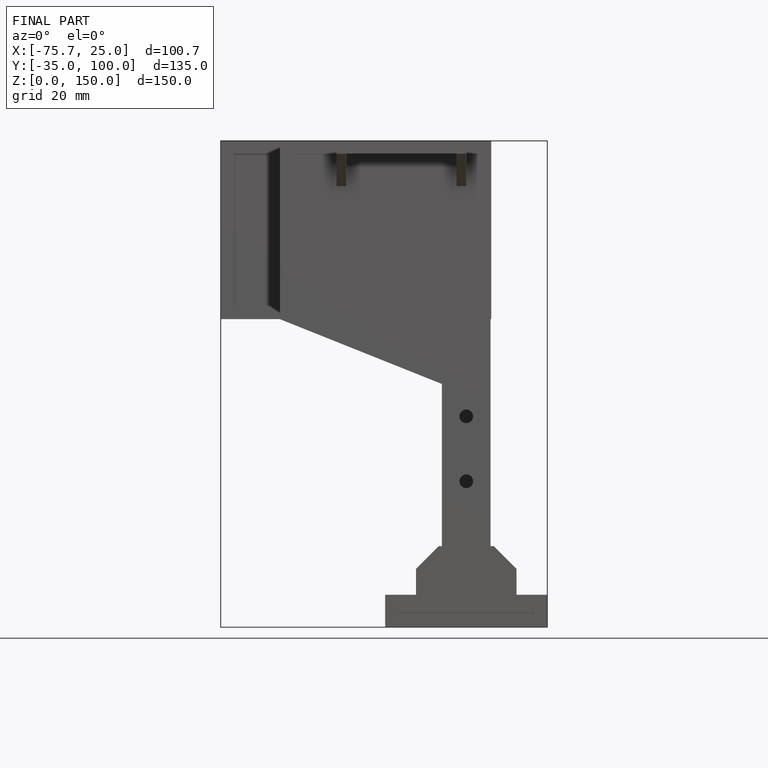
[diagram: finished part — front view with bounding-box wireframe]
